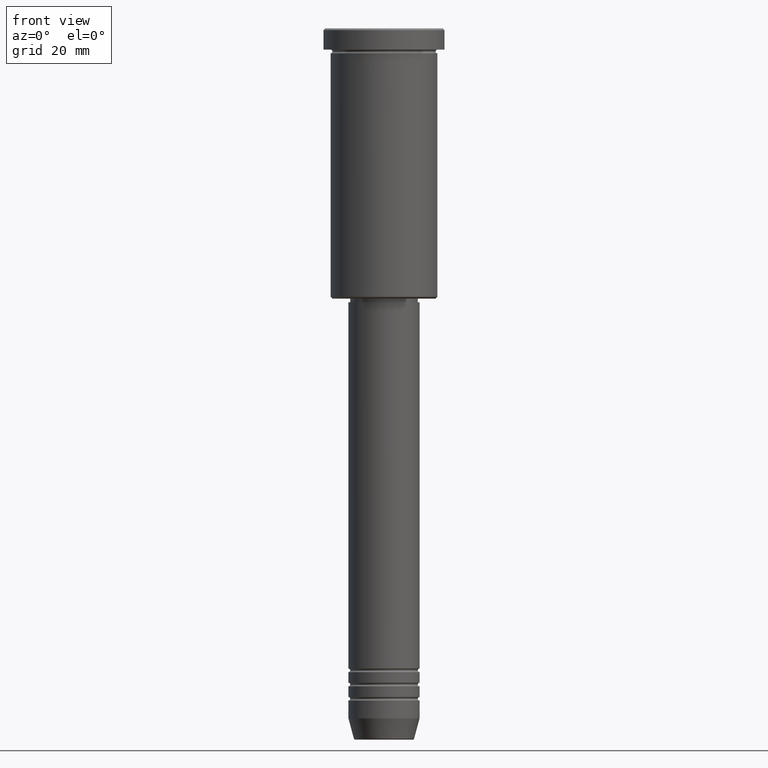
[diagram: clean part render]
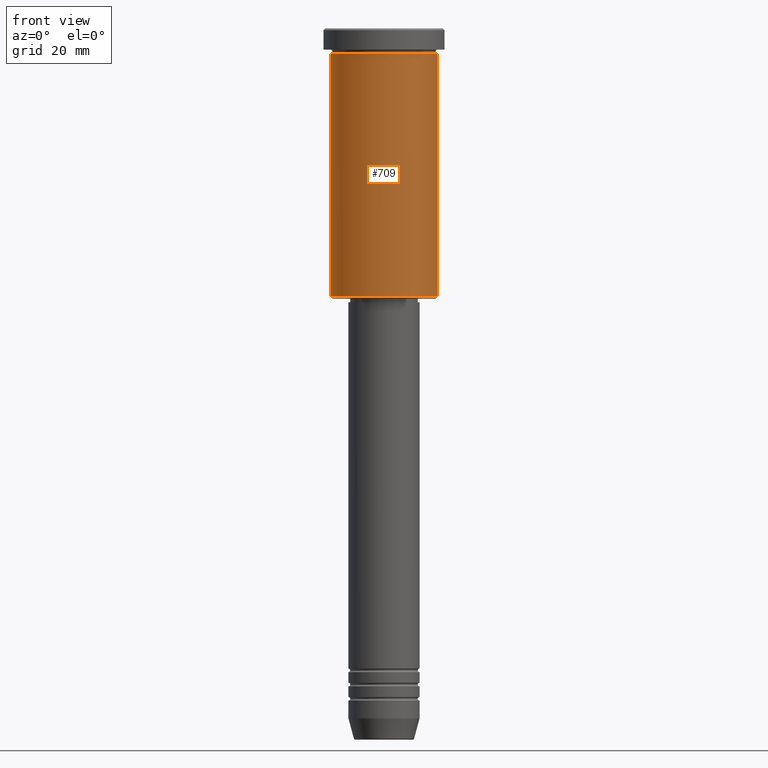
[diagram: same view with one face highlighted and labeled with its STEP entity id]
A machine part, front view. The second image highlights one B-rep face of the part: STEP entity #709.
In plain terms, the highlighted cylindrical surface (partial cylindrical patch) has radius 15 mm, axis along (-0, -0, 1).
Its self-contained STEP definition (entity closure, byte-faithful):
#22 = AXIS2_PLACEMENT_3D ( 'NONE', #704, #984, #794 ) ;
#78 = CARTESIAN_POINT ( 'NONE',  ( 15.00000000000000000, 0.000000000000000000, 0.000000000000000000 ) ) ;
#88 = VERTEX_POINT ( 'NONE', #599 ) ;
#102 = AXIS2_PLACEMENT_3D ( 'NONE', #768, #1049, #469 ) ;
#227 = EDGE_CURVE ( 'NONE', #88, #385, #346, .T. ) ;
#246 = ORIENTED_EDGE ( 'NONE', *, *, #1057, .F. ) ;
#255 = DIRECTION ( 'NONE',  ( -1.000000000000000000, 0.000000000000000000, 0.000000000000000000 ) ) ;
#298 = EDGE_CURVE ( 'NONE', #755, #88, #752, .T. ) ;
#319 = EDGE_CURVE ( 'NONE', #755, #658, #378, .T. ) ;
#346 = LINE ( 'NONE', #78, #696 ) ;
#350 = ORIENTED_EDGE ( 'NONE', *, *, #227, .T. ) ;
#378 = LINE ( 'NONE', #854, #878 ) ;
#385 = VERTEX_POINT ( 'NONE', #763 ) ;
#453 = FACE_OUTER_BOUND ( 'NONE', #673, .T. ) ;
#469 = DIRECTION ( 'NONE',  ( 1.000000000000000000, 0.000000000000000000, 0.000000000000000000 ) ) ;
#563 = ORIENTED_EDGE ( 'NONE', *, *, #298, .T. ) ;
#599 = CARTESIAN_POINT ( 'NONE',  ( 15.00000000000000000, 0.000000000000000000, -75.49999999999997158 ) ) ;
#615 = CIRCLE ( 'NONE', #102, 15.00000000000000000 ) ;
#636 = CYLINDRICAL_SURFACE ( 'NONE', #22, 15.00000000000000000 ) ;
#658 = VERTEX_POINT ( 'NONE', #1076 ) ;
#673 = EDGE_LOOP ( 'NONE', ( #737, #563, #350, #246 ) ) ;
#696 = VECTOR ( 'NONE', #915, 1000.000000000000000 ) ;
#704 = CARTESIAN_POINT ( 'NONE',  ( 0.000000000000000000, 0.000000000000000000, 0.000000000000000000 ) ) ;
#709 = ADVANCED_FACE ( 'NONE', ( #453 ), #636, .T. ) ;
#716 = CARTESIAN_POINT ( 'NONE',  ( -15.00000000000000000, 1.836970198721029589E-15, -75.49999999999997158 ) ) ;
#737 = ORIENTED_EDGE ( 'NONE', *, *, #319, .F. ) ;
#744 = DIRECTION ( 'NONE',  ( -0.000000000000000000, -0.000000000000000000, 1.000000000000000000 ) ) ;
#752 = CIRCLE ( 'NONE', #1005, 15.00000000000000000 ) ;
#755 = VERTEX_POINT ( 'NONE', #716 ) ;
#763 = CARTESIAN_POINT ( 'NONE',  ( 15.00000000000000000, 0.000000000000000000, -6.999999999999995559 ) ) ;
#768 = CARTESIAN_POINT ( 'NONE',  ( 0.000000000000000000, 0.000000000000000000, -6.999999999999995559 ) ) ;
#794 = DIRECTION ( 'NONE',  ( 1.000000000000000000, 0.000000000000000000, 0.000000000000000000 ) ) ;
#814 = CARTESIAN_POINT ( 'NONE',  ( 0.000000000000000000, 0.000000000000000000, -75.49999999999997158 ) ) ;
#854 = CARTESIAN_POINT ( 'NONE',  ( -15.00000000000000000, 1.836970198721029589E-15, 0.000000000000000000 ) ) ;
#878 = VECTOR ( 'NONE', #744, 1000.000000000000000 ) ;
#915 = DIRECTION ( 'NONE',  ( -0.000000000000000000, -0.000000000000000000, 1.000000000000000000 ) ) ;
#984 = DIRECTION ( 'NONE',  ( -0.000000000000000000, -0.000000000000000000, 1.000000000000000000 ) ) ;
#1005 = AXIS2_PLACEMENT_3D ( 'NONE', #814, #1176, #255 ) ;
#1049 = DIRECTION ( 'NONE',  ( -0.000000000000000000, -0.000000000000000000, 1.000000000000000000 ) ) ;
#1057 = EDGE_CURVE ( 'NONE', #658, #385, #615, .T. ) ;
#1076 = CARTESIAN_POINT ( 'NONE',  ( -15.00000000000000000, 1.836970198721029589E-15, -6.999999999999995559 ) ) ;
#1176 = DIRECTION ( 'NONE',  ( -0.000000000000000000, -0.000000000000000000, 1.000000000000000000 ) ) ;